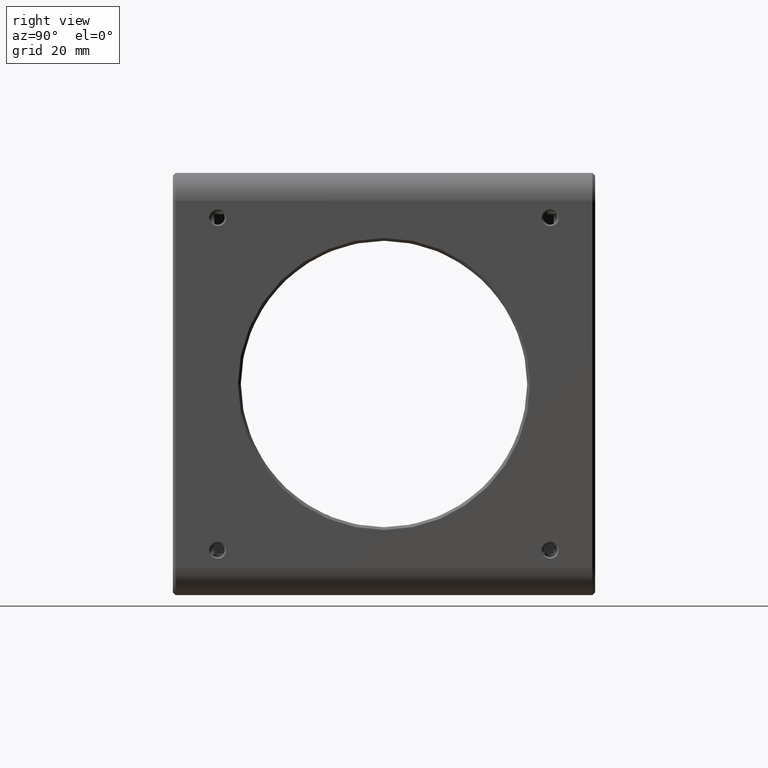
[diagram: clean part render]
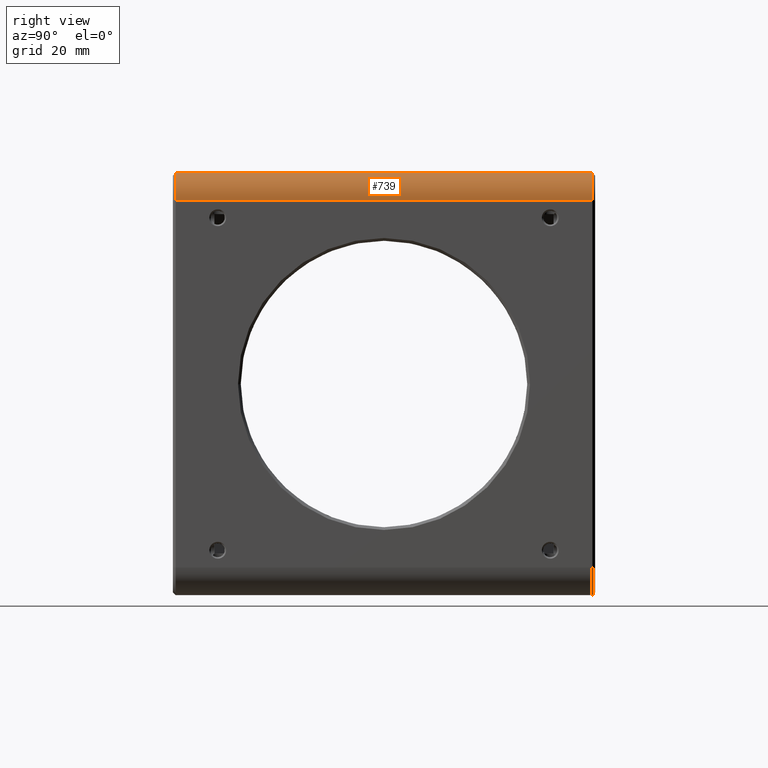
[diagram: same view with one face highlighted and labeled with its STEP entity id]
A machine part, right view. The second image highlights one B-rep face of the part: STEP entity #739.
In plain terms, the highlighted cylindrical surface (edge-blend (fillet) strip) has radius 5 mm, axis along (0, -1, 0).
Its self-contained STEP definition (entity closure, byte-faithful):
#82 = DIRECTION ( 'NONE',  ( 0.0000000000000000000, 1.000000000000000000, 0.0000000000000000000 ) ) ;
#155 = FACE_OUTER_BOUND ( 'NONE', #421, .T. ) ;
#331 = CIRCLE ( 'NONE', #2757, 5.000000000000000888 ) ;
#421 = EDGE_LOOP ( 'NONE', ( #4927, #3123, #1846, #2174 ) ) ;
#482 = CARTESIAN_POINT ( 'NONE',  ( 33.10000000000000142, 6.028277906019141821E-15, 33.10000000000000142 ) ) ;
#547 = VECTOR ( 'NONE', #4851, 1000.000000000000000 ) ;
#739 = ADVANCED_FACE ( 'NONE', ( #155 ), #3324, .T. ) ;
#837 = CARTESIAN_POINT ( 'NONE',  ( 33.10000000000000853, -37.60000000000002274, 38.10000000000000142 ) ) ;
#897 = LINE ( 'NONE', #2336, #3108 ) ;
#1249 = CIRCLE ( 'NONE', #1285, 4.999999999999997335 ) ;
#1285 = AXIS2_PLACEMENT_3D ( 'NONE', #3411, #82, #1962 ) ;
#1440 = DIRECTION ( 'NONE',  ( 1.000000000000000000, 1.821231995776176958E-16, 0.0000000000000000000 ) ) ;
#1846 = ORIENTED_EDGE ( 'NONE', *, *, #2558, .F. ) ;
#1882 = DIRECTION ( 'NONE',  ( -1.821231995776175479E-16, 1.000000000000000000, -0.0000000000000000000 ) ) ;
#1937 = AXIS2_PLACEMENT_3D ( 'NONE', #482, #2854, #1440 ) ;
#1962 = DIRECTION ( 'NONE',  ( 0.0000000000000000000, 0.0000000000000000000, 1.000000000000000000 ) ) ;
#1980 = VERTEX_POINT ( 'NONE', #2325 ) ;
#2087 = DIRECTION ( 'NONE',  ( 0.0000000000000000000, 0.0000000000000000000, -1.000000000000000000 ) ) ;
#2174 = ORIENTED_EDGE ( 'NONE', *, *, #2622, .T. ) ;
#2325 = CARTESIAN_POINT ( 'NONE',  ( 38.10000000000000853, -37.60000000000002274, 33.10000000000000142 ) ) ;
#2331 = VERTEX_POINT ( 'NONE', #837 ) ;
#2336 = CARTESIAN_POINT ( 'NONE',  ( 33.09999999999999432, 38.09999999999999432, 38.10000000000000142 ) ) ;
#2348 = VERTEX_POINT ( 'NONE', #4137 ) ;
#2430 = LINE ( 'NONE', #3911, #547 ) ;
#2558 = EDGE_CURVE ( 'NONE', #2348, #1980, #2430, .T. ) ;
#2622 = EDGE_CURVE ( 'NONE', #2348, #4706, #331, .T. ) ;
#2757 = AXIS2_PLACEMENT_3D ( 'NONE', #4874, #3453, #2087 ) ;
#2854 = DIRECTION ( 'NONE',  ( 1.821231995776175479E-16, -1.000000000000000000, 0.0000000000000000000 ) ) ;
#3108 = VECTOR ( 'NONE', #1882, 1000.000000000000000 ) ;
#3123 = ORIENTED_EDGE ( 'NONE', *, *, #3163, .T. ) ;
#3163 = EDGE_CURVE ( 'NONE', #2331, #1980, #1249, .T. ) ;
#3324 = CYLINDRICAL_SURFACE ( 'NONE', #1937, 4.999999999999997335 ) ;
#3411 = CARTESIAN_POINT ( 'NONE',  ( 33.10000000000000853, -37.60000000000002274, 33.10000000000000142 ) ) ;
#3453 = DIRECTION ( 'NONE',  ( 0.0000000000000000000, -1.000000000000000000, 0.0000000000000000000 ) ) ;
#3722 = EDGE_CURVE ( 'NONE', #2331, #4706, #897, .T. ) ;
#3911 = CARTESIAN_POINT ( 'NONE',  ( 38.10000000000000853, -38.10000000000000853, 33.10000000000000142 ) ) ;
#4137 = CARTESIAN_POINT ( 'NONE',  ( 38.09999999999999432, 37.60000000000000853, 33.10000000000000142 ) ) ;
#4253 = CARTESIAN_POINT ( 'NONE',  ( 33.09999999999999432, 37.60000000000000853, 38.10000000000000142 ) ) ;
#4706 = VERTEX_POINT ( 'NONE', #4253 ) ;
#4851 = DIRECTION ( 'NONE',  ( 1.821231995776175479E-16, -1.000000000000000000, -0.0000000000000000000 ) ) ;
#4874 = CARTESIAN_POINT ( 'NONE',  ( 33.09999999999999432, 37.60000000000000853, 33.10000000000000142 ) ) ;
#4927 = ORIENTED_EDGE ( 'NONE', *, *, #3722, .F. ) ;